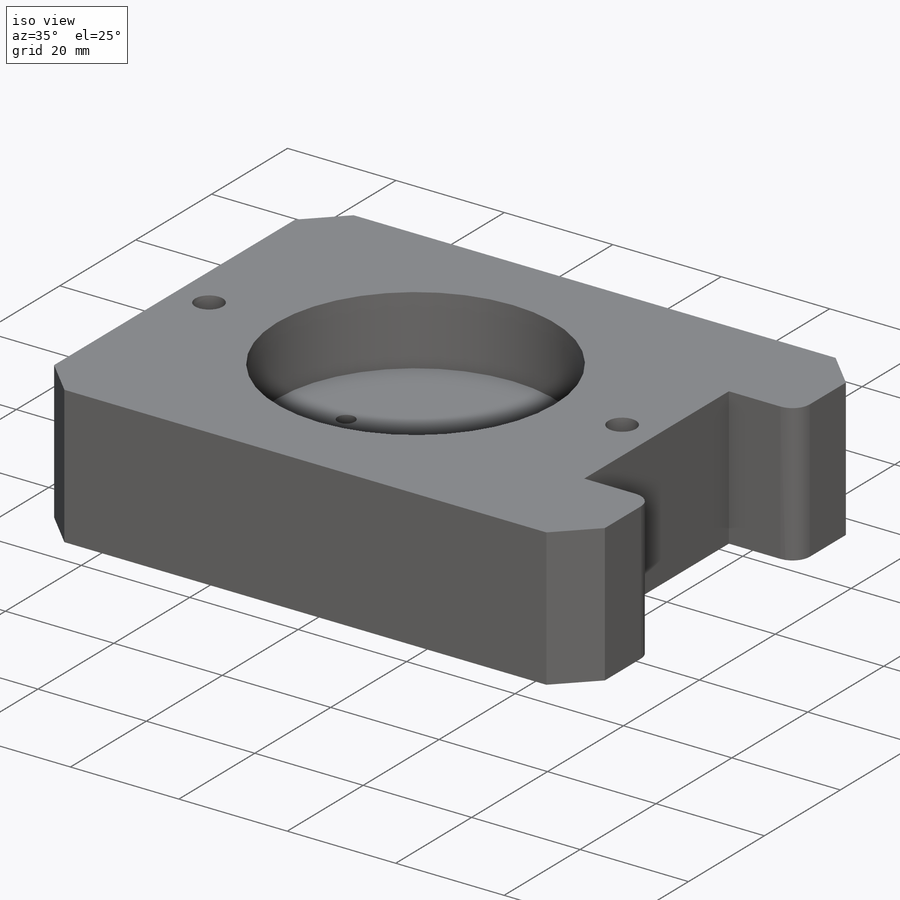
[diagram: iso view]
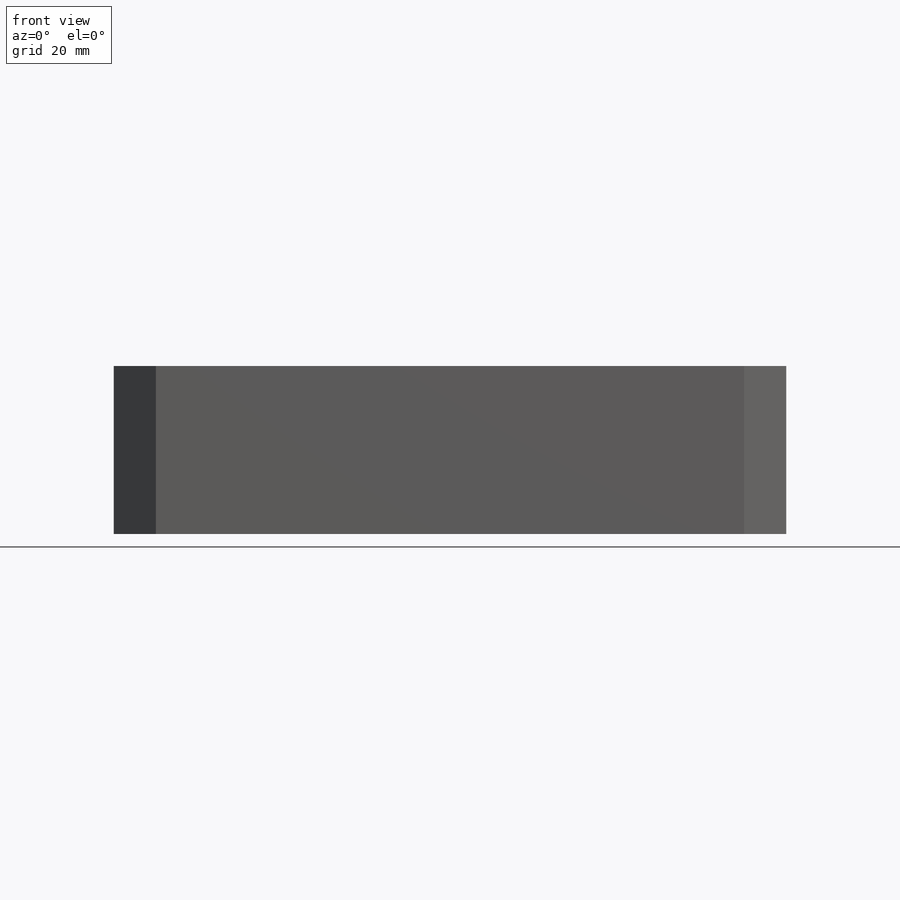
[diagram: front view]
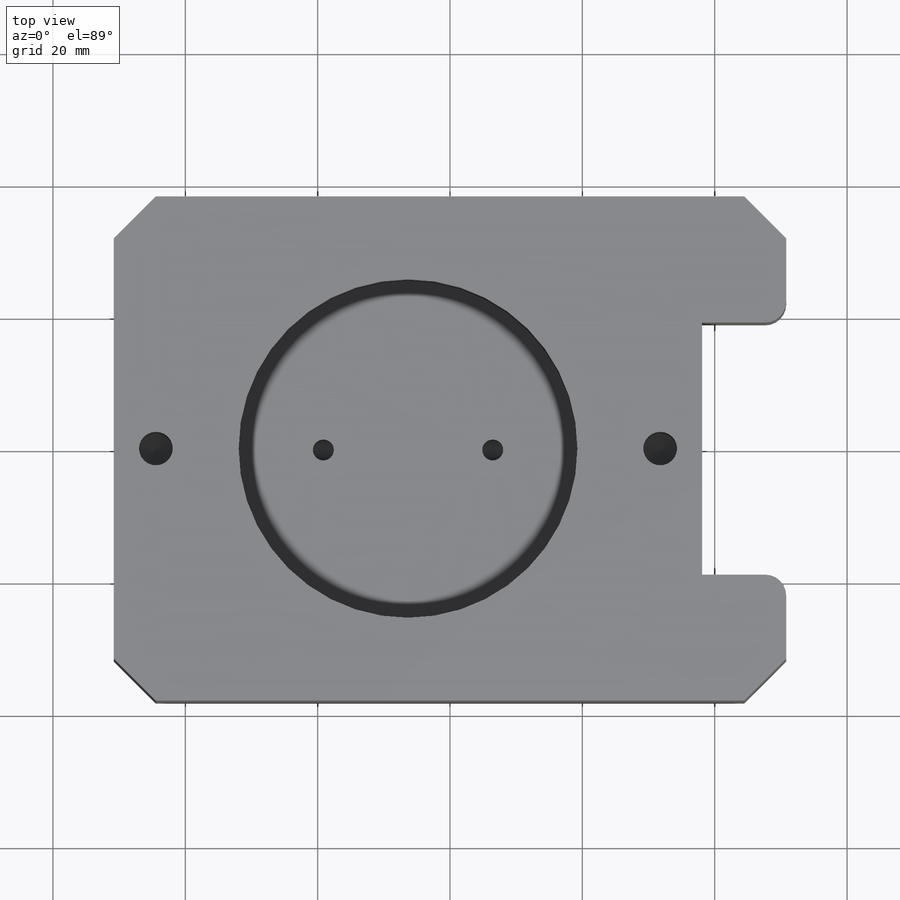
[diagram: top view]
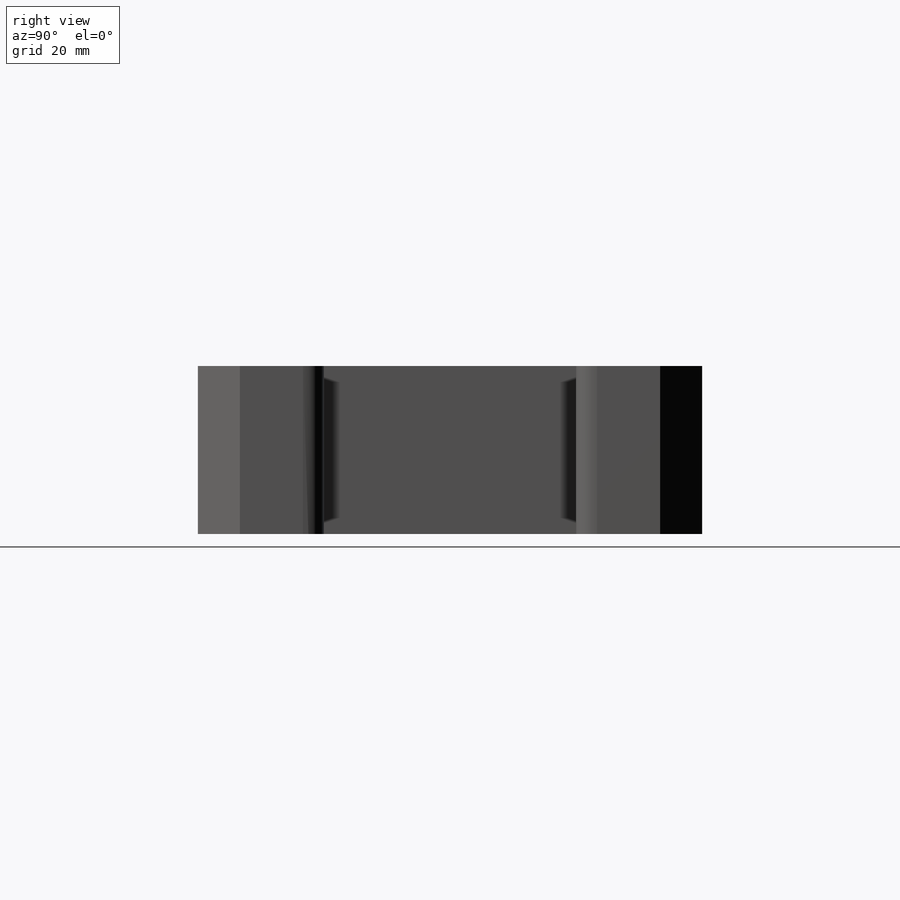
[diagram: right view]
SOLIDWORKS PART (.sldprt)
format: sldprt  version: not decoded by parser v0  size: 652,800 bytes
history: native  units: mm
features: sketch x12, cut_extrude x3, hole x3, thread x2, material x1, extrude x1, fillet x1, chamfer x1, sweep x1 (+13 scaffold rows collapsed)
feature tree (38):
  scaffold x13  (default folders/planes/origin — collapsed)
  material  "Material <not specified>"
  sketch  "Sketch1"  dims[D1=101.6mm D2=76.2mm D3=38.1mm D4=12.7mm]
  extrude  "box body"  Depth=25.4mm
  sketch  "Sketch3"  dims[D1=51.181mm]
  cut_extrude  "sample hole"  Depth=12.7mm
  fillet  "cutout edge fillet"  Radius=3.175mm
  chamfer  "box edge chamfer"  Distance=6.35mm Angle=45deg
  hole  "box clamp threaded holes"  Diameter=5.1054mm Depth=12.7mm
  sketch  "Sketch5"  dims[c1.D1=51.181mm c1.D2=51.181mm c2.D1=38.1mm c2.D2=38.1mm]
  sketch  "Sketch4"  dims[hole-wizard template sketch: 47 standard entries collapsed; hole parameters kept: c15.Tap Drill Depth=12.7mm c15.D3=~14.816244mm c15.Drill Angle=118.0deg]
  thread  "Hole Thread1"  Diameter=12.7mm  [1 undecoded]
  thread  "Hole Thread2"  Diameter=12.7mm  [1 undecoded]
  sketch  "Sketch6"
  sketch  "hole profile"
  sweep  "horizontal fluid path"
  sketch  "fluid holes"  dims[D1=3.175mm]
  sketch  "Sketch10"  dims[D1=3.175mm D2=6.35mm]
  cut_extrude  "Cut-Extrude2"  Depth=63.5mm
  cut_extrude  "Cut-Extrude3"  [1 undecoded]
  hole  "1/16 NPT Tapped Hole1"  Diameter=6.1468mm Depth=11.684mm
  sketch  "Sketch14"
  sketch  "Sketch13"  dims[hole-wizard template sketch: 50 standard entries collapsed; hole parameters kept: c13.Tap Drill Dia.=6.1468mm c13.Tap Drill Depth=11.684mm c13.Thread Dia.=~7.935824mm c13.D4=~22.362017mm c13.Thread Angle=3.43deg c13.Thread Depth=6.858mm c13.D6=~25.48394mm c13.Drill Angle=118.0deg]
  hole  "1/16 NPT Tapped Hole2"  Diameter=6.1468mm Depth=11.684mm
  sketch  "Sketch17"
  sketch  "Sketch15"  dims[hole-wizard template sketch: 50 standard entries collapsed; hole parameters kept: c13.Tap Drill Dia.=6.1468mm c13.Tap Drill Depth=11.684mm c13.Thread Dia.=~7.935824mm c13.D4=~22.362017mm c13.Thread Angle=3.43deg c13.Thread Depth=6.858mm c13.D6=~25.48394mm c13.Drill Angle=118.0deg]
decode coverage: 18 of 24 modeling features carry decoded parameters
note: ~ marks probable driven/reference dimensions
note: 3 parameter values undecoded
note: suppression state not decoded; provenance and decode notes live in map.json
